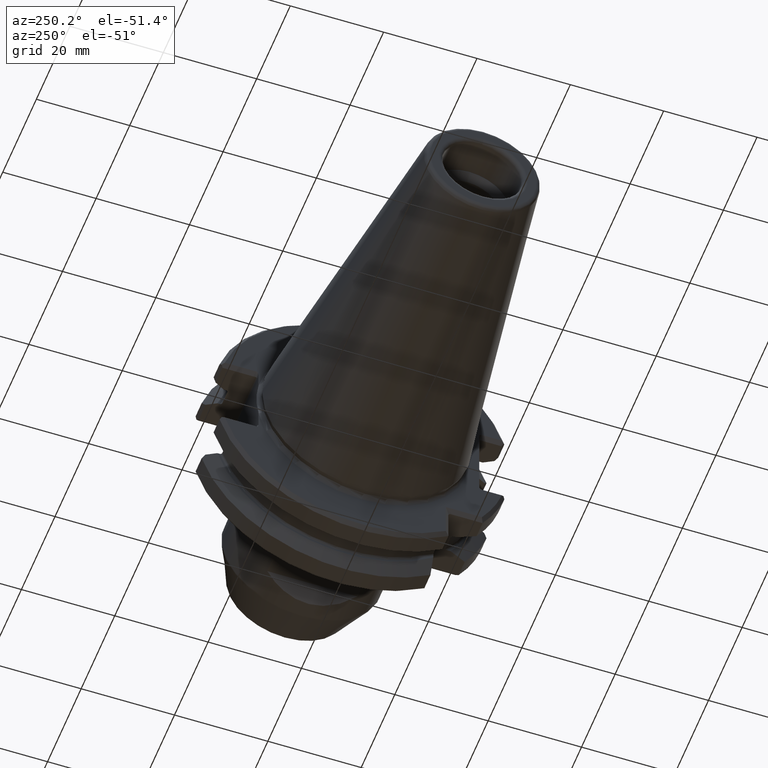
[diagram: clean part render]
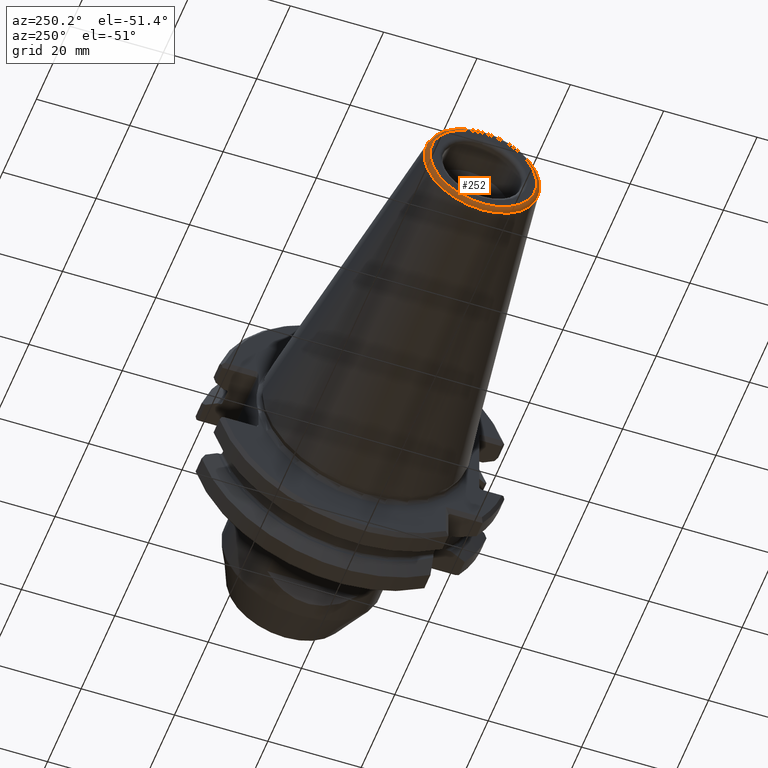
[diagram: same view with one face highlighted and labeled with its STEP entity id]
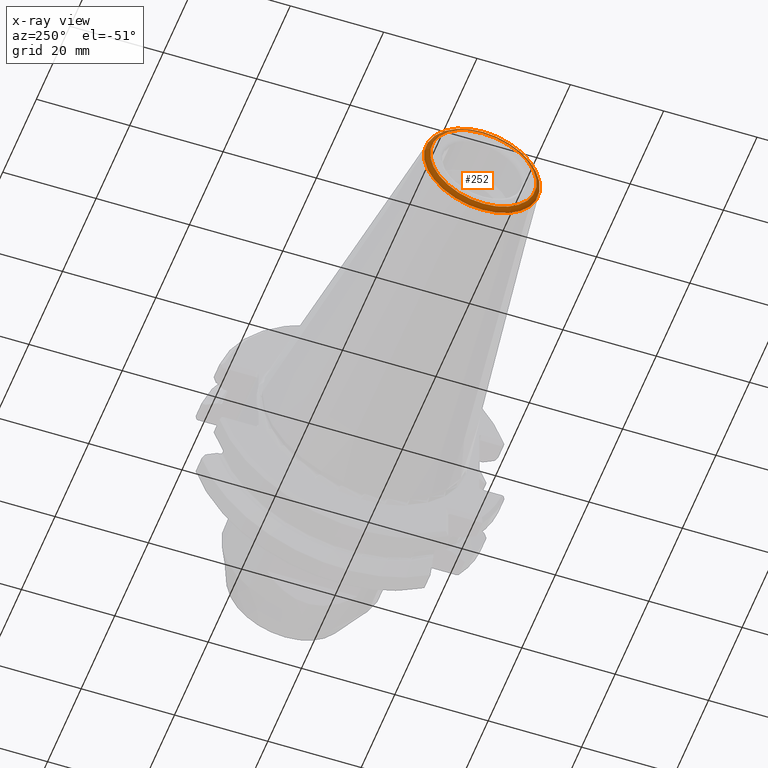
[diagram: x-ray of the same camera — body ghosted, the highlighted face saturated]
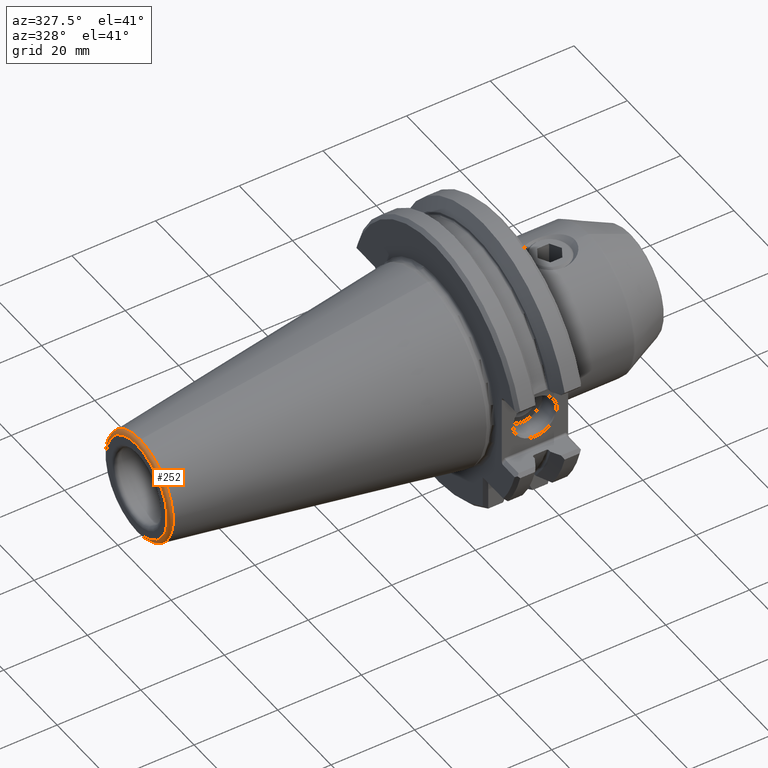
[diagram: same view with one face highlighted and labeled with its STEP entity id]
A machine part, auxiliary view. The second image highlights one B-rep face of the part: STEP entity #252.
The next image is the same camera in x-ray: the body ghosted, the highlighted face saturated — about 0% of this face is hidden behind the body in this view.
A second angle (auxiliary view) of the same face is appended — the face is thin or edge-on in the first view.
In plain terms, the highlighted toroidal blend (fillet) surface has major radius 11.4072 mm and minor (blend) radius 1 mm.
Its self-contained STEP definition (entity closure, byte-faithful):
#252 = ADVANCED_FACE( '', ( #590, #591 ), #592, .T. );
#590 = FACE_OUTER_BOUND( '', #1022, .T. );
#591 = FACE_OUTER_BOUND( '', #1023, .T. );
#592 = TOROIDAL_SURFACE( '', #1024, 11.4071846178652, 1.00000000000000 );
#1022 = EDGE_LOOP( '', ( #1663 ) );
#1023 = EDGE_LOOP( '', ( #1664 ) );
#1024 = AXIS2_PLACEMENT_3D( '', #1665, #1666, #1667 );
#1663 = ORIENTED_EDGE( '', *, *, #2566, .F. );
#1664 = ORIENTED_EDGE( '', *, *, #2567, .T. );
#1665 = CARTESIAN_POINT( '', ( -67.2500000000000, 0.000000000000000, 0.000000000000000 ) );
#1666 = DIRECTION( '', ( -1.00000000000000, 0.000000000000000, 0.000000000000000 ) );
#1667 = DIRECTION( '', ( 0.000000000000000, 0.000000000000000, 1.00000000000000 ) );
#2566 = EDGE_CURVE( '', #3106, #3106, #3107, .T. );
#2567 = EDGE_CURVE( '', #3108, #3108, #3109, .T. );
#3106 = VERTEX_POINT( '', #3880 );
#3107 = CIRCLE( '', #3881, 11.4071846178652 );
#3108 = VERTEX_POINT( '', #3882 );
#3109 = CIRCLE( '', #3883, 12.3967177121906 );
#3880 = CARTESIAN_POINT( '', ( -68.2500000000000, 0.000000000000000, 11.4071846178652 ) );
#3881 = AXIS2_PLACEMENT_3D( '', #4704, #4705, #4706 );
#3882 = CARTESIAN_POINT( '', ( -67.3943061164152, 0.000000000000000, 12.3967177121906 ) );
#3883 = AXIS2_PLACEMENT_3D( '', #4707, #4708, #4709 );
#4704 = CARTESIAN_POINT( '', ( -68.2500000000000, 0.000000000000000, 0.000000000000000 ) );
#4705 = DIRECTION( '', ( -1.00000000000000, 0.000000000000000, 0.000000000000000 ) );
#4706 = DIRECTION( '', ( 0.000000000000000, 0.000000000000000, 1.00000000000000 ) );
#4707 = CARTESIAN_POINT( '', ( -67.3943061164152, 0.000000000000000, 0.000000000000000 ) );
#4708 = DIRECTION( '', ( -1.00000000000000, 0.000000000000000, 0.000000000000000 ) );
#4709 = DIRECTION( '', ( 0.000000000000000, 0.000000000000000, 1.00000000000000 ) );